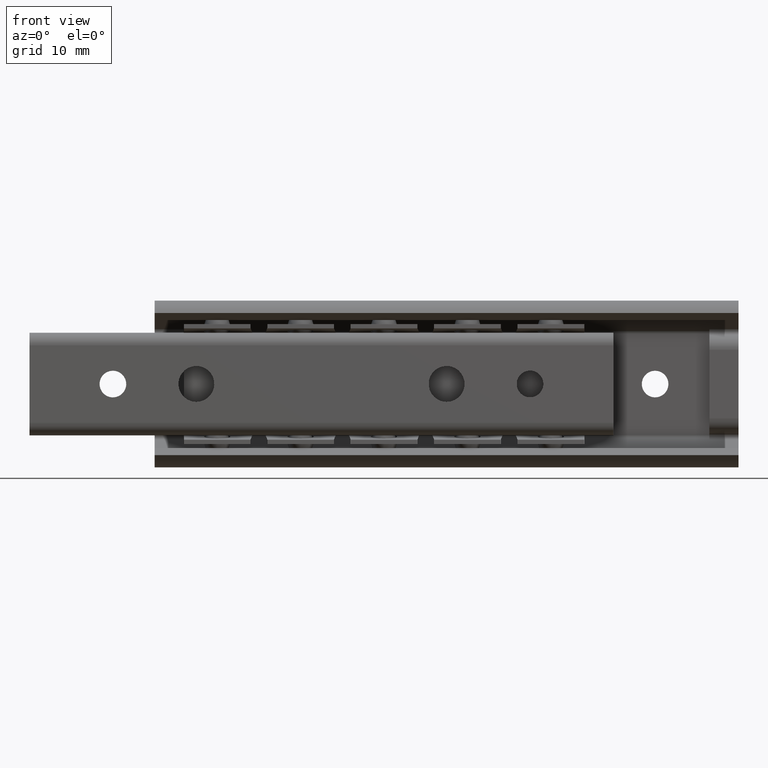
[diagram: clean part render]
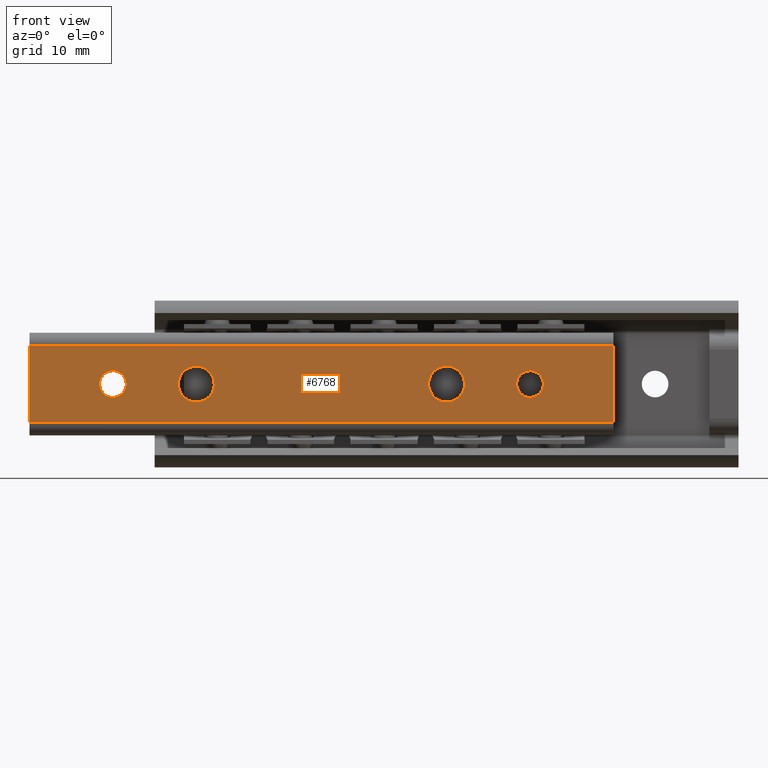
[diagram: same view with one face highlighted and labeled with its STEP entity id]
A machine part, front view. The second image highlights one B-rep face of the part: STEP entity #6768.
In plain terms, the highlighted face is a freeform B-spline surface patch.
Its self-contained STEP definition (entity closure, byte-faithful):
#5509=CARTESIAN_POINT('',(-6.588815242147287,-8.000000000000119,0.188854775741730));
#5510=VERTEX_POINT('',#5509);
#5516=CARTESIAN_POINT('',(-5.0,-8.000000000000119,-1.600000000000000));
#5517=VERTEX_POINT('',#5516);
#5518=CARTESIAN_POINT('',(-6.588815242147287,-8.000000000000119,0.188854775741730));
#5519=CARTESIAN_POINT('',(-6.600000000000000,-8.000000000000119,0.094758591737048));
#5520=CARTESIAN_POINT('',(-6.600000000000000,-8.000000000000119,0.0));
#5521=CARTESIAN_POINT('',(-6.599999999999999,-8.000000000000119,-1.600000000000000));
#5522=CARTESIAN_POINT('',(-5.0,-8.000000000000119,-1.600000000000000));
#5530=(BOUNDED_CURVE()B_SPLINE_CURVE(2,(#5518,#5519,#5520,#5521,#5522),.UNSPECIFIED.,.F.,.U.)B_SPLINE_CURVE_WITH_KNOTS((3,2,3),(0.229562473453754,0.250000000000000,0.500000000000000),.UNSPECIFIED.)CURVE()GEOMETRIC_REPRESENTATION_ITEM()RATIONAL_B_SPLINE_CURVE((0.956026754066579,0.976055948261139,1.0,0.707106781186548,1.0))REPRESENTATION_ITEM(''));
#5531=EDGE_CURVE('',#5510,#5517,#5530,.T.);
#5533=CARTESIAN_POINT('',(-3.402984322542689,-8.000000000000119,-0.097677663544763));
#5534=VERTEX_POINT('',#5533);
#5535=CARTESIAN_POINT('',(-5.0,-8.000000000000119,-1.600000000000000));
#5536=CARTESIAN_POINT('',(-3.494870293496632,-8.000000000000119,-1.600000000000000));
#5537=CARTESIAN_POINT('',(-3.402984322542688,-8.000000000000119,-0.097677663544763));
#5545=(BOUNDED_CURVE()B_SPLINE_CURVE(2,(#5535,#5536,#5537),.UNSPECIFIED.,.F.,.U.)B_SPLINE_CURVE_WITH_KNOTS((3,3),(0.500000000000000,0.739332962179521),.UNSPECIFIED.)CURVE()GEOMETRIC_REPRESENTATION_ITEM()RATIONAL_B_SPLINE_CURVE((1.0,0.719603993356327,0.976072041539366))REPRESENTATION_ITEM(''));
#5546=EDGE_CURVE('',#5517,#5534,#5545,.T.);
#5620=CARTESIAN_POINT('',(-5.0,-8.000000000000119,1.600000000000000));
#5621=VERTEX_POINT('',#5620);
#5622=CARTESIAN_POINT('',(-3.402984322542688,-8.000000000000119,-0.097677663544763));
#5623=CARTESIAN_POINT('',(-3.400000000000000,-8.000000000000119,-0.048884421567544));
#5624=CARTESIAN_POINT('',(-3.400000000000000,-8.000000000000119,0.0));
#5625=CARTESIAN_POINT('',(-3.400000000000001,-8.000000000000119,1.600000000000000));
#5626=CARTESIAN_POINT('',(-5.0,-8.000000000000119,1.600000000000000));
#5634=(BOUNDED_CURVE()B_SPLINE_CURVE(2,(#5622,#5623,#5624,#5625,#5626),.UNSPECIFIED.,.F.,.U.)B_SPLINE_CURVE_WITH_KNOTS((3,2,3),(0.739332962179521,0.750000000000000,1.0),.UNSPECIFIED.)CURVE()GEOMETRIC_REPRESENTATION_ITEM()RATIONAL_B_SPLINE_CURVE((0.976072041539366,0.987502787830221,1.0,0.707106781186548,1.0))REPRESENTATION_ITEM(''));
#5635=EDGE_CURVE('',#5534,#5621,#5634,.T.);
#5637=CARTESIAN_POINT('',(-5.0,-8.000000000000119,1.600000000000000));
#5638=CARTESIAN_POINT('',(-6.421079240998118,-8.000000000000121,1.600000000000001));
#5639=CARTESIAN_POINT('',(-6.588815242147287,-8.000000000000119,0.188854775741730));
#5647=(BOUNDED_CURVE()B_SPLINE_CURVE(2,(#5637,#5638,#5639),.UNSPECIFIED.,.F.,.U.)B_SPLINE_CURVE_WITH_KNOTS((3,3),(0.0,0.229562473453754),.UNSPECIFIED.)CURVE()GEOMETRIC_REPRESENTATION_ITEM()RATIONAL_B_SPLINE_CURVE((1.0,0.731050832925409,0.956026754066579))REPRESENTATION_ITEM(''));
#5648=EDGE_CURVE('',#5621,#5510,#5647,.T.);
#5695=CARTESIAN_POINT('',(2.865029518322007,-8.000000000000119,0.253773604544754));
#5696=VERTEX_POINT('',#5695);
#5702=CARTESIAN_POINT('',(5.0,-8.000000000000119,-2.150000000000000));
#5703=VERTEX_POINT('',#5702);
#5704=CARTESIAN_POINT('',(2.865029518322007,-8.000000000000119,0.253773604544754));
#5705=CARTESIAN_POINT('',(2.850000000000000,-8.000000000000119,0.127331857284676));
#5706=CARTESIAN_POINT('',(2.850000000000000,-8.000000000000119,0.0));
#5707=CARTESIAN_POINT('',(2.850000000000000,-8.000000000000119,-2.150000000000000));
#5708=CARTESIAN_POINT('',(5.0,-8.000000000000119,-2.150000000000000));
#5716=(BOUNDED_CURVE()B_SPLINE_CURVE(2,(#5704,#5705,#5706,#5707,#5708),.UNSPECIFIED.,.F.,.U.)B_SPLINE_CURVE_WITH_KNOTS((3,2,3),(0.229562473510463,0.250000000000000,0.500000000000000),.UNSPECIFIED.)CURVE()GEOMETRIC_REPRESENTATION_ITEM()RATIONAL_B_SPLINE_CURVE((0.956026754177731,0.976055948327578,1.0,0.707106781186547,1.0))REPRESENTATION_ITEM(''));
#5717=EDGE_CURVE('',#5696,#5703,#5716,.T.);
#5719=CARTESIAN_POINT('',(7.145989816579951,-8.000000000000119,-0.131254360442416));
#5720=VERTEX_POINT('',#5719);
#5721=CARTESIAN_POINT('',(5.0,-8.000000000000119,-2.150000000000000));
#5722=CARTESIAN_POINT('',(7.022518043011661,-8.000000000000119,-2.150000000000000));
#5723=CARTESIAN_POINT('',(7.145989816579951,-8.000000000000119,-0.131254360442416));
#5731=(BOUNDED_CURVE()B_SPLINE_CURVE(2,(#5721,#5722,#5723),.UNSPECIFIED.,.F.,.U.)B_SPLINE_CURVE_WITH_KNOTS((3,3),(0.500000000000000,0.739332962170815),.UNSPECIFIED.)CURVE()GEOMETRIC_REPRESENTATION_ITEM()RATIONAL_B_SPLINE_CURVE((1.0,0.719603993366527,0.976072041520707))REPRESENTATION_ITEM(''));
#5732=EDGE_CURVE('',#5703,#5720,#5731,.T.);
#5806=CARTESIAN_POINT('',(5.0,-8.000000000000119,2.150000000000000));
#5807=VERTEX_POINT('',#5806);
#5808=CARTESIAN_POINT('',(7.145989816579951,-8.000000000000119,-0.131254360442416));
#5809=CARTESIAN_POINT('',(7.150000000000000,-8.000000000000119,-0.065688441535680));
#5810=CARTESIAN_POINT('',(7.150000000000000,-8.000000000000119,0.0));
#5811=CARTESIAN_POINT('',(7.150000000000003,-8.000000000000119,2.150000000000000));
#5812=CARTESIAN_POINT('',(5.0,-8.000000000000119,2.150000000000000));
#5820=(BOUNDED_CURVE()B_SPLINE_CURVE(2,(#5808,#5809,#5810,#5811,#5812),.UNSPECIFIED.,.F.,.U.)B_SPLINE_CURVE_WITH_KNOTS((3,2,3),(0.739332962170815,0.750000000000000,1.0),.UNSPECIFIED.)CURVE()GEOMETRIC_REPRESENTATION_ITEM()RATIONAL_B_SPLINE_CURVE((0.976072041520706,0.987502787820020,1.0,0.707106781186547,1.0))REPRESENTATION_ITEM(''));
#5821=EDGE_CURVE('',#5720,#5807,#5820,.T.);
#5823=CARTESIAN_POINT('',(5.0,-8.000000000000119,2.150000000000000));
#5824=CARTESIAN_POINT('',(3.090424769263509,-8.000000000000121,2.150000000000000));
#5825=CARTESIAN_POINT('',(2.865029518322007,-8.000000000000119,0.253773604544754));
#5833=(BOUNDED_CURVE()B_SPLINE_CURVE(2,(#5823,#5824,#5825),.UNSPECIFIED.,.F.,.U.)B_SPLINE_CURVE_WITH_KNOTS((3,3),(0.0,0.229562473510463),.UNSPECIFIED.)CURVE()GEOMETRIC_REPRESENTATION_ITEM()RATIONAL_B_SPLINE_CURVE((1.0,0.731050832858970,0.956026754177731))REPRESENTATION_ITEM(''));
#5834=EDGE_CURVE('',#5807,#5696,#5833,.T.);
#5881=CARTESIAN_POINT('',(32.865029518321997,-8.000000000000117,0.253773604544754));
#5882=VERTEX_POINT('',#5881);
#5888=CARTESIAN_POINT('',(35.0,-8.000000000000119,-2.150000000000000));
#5889=VERTEX_POINT('',#5888);
#5890=CARTESIAN_POINT('',(32.865029518321997,-8.000000000000117,0.253773604544754));
#5891=CARTESIAN_POINT('',(32.850000000000009,-8.000000000000119,0.127331857284676));
#5892=CARTESIAN_POINT('',(32.850000000000001,-8.000000000000119,0.0));
#5893=CARTESIAN_POINT('',(32.850000000000009,-8.000000000000119,-2.150000000000000));
#5894=CARTESIAN_POINT('',(35.0,-8.000000000000119,-2.150000000000000));
#5902=(BOUNDED_CURVE()B_SPLINE_CURVE(2,(#5890,#5891,#5892,#5893,#5894),.UNSPECIFIED.,.F.,.U.)B_SPLINE_CURVE_WITH_KNOTS((3,2,3),(0.229562473510463,0.250000000000000,0.500000000000000),.UNSPECIFIED.)CURVE()GEOMETRIC_REPRESENTATION_ITEM()RATIONAL_B_SPLINE_CURVE((0.956026754177731,0.976055948327578,1.0,0.707106781186547,1.0))REPRESENTATION_ITEM(''));
#5903=EDGE_CURVE('',#5882,#5889,#5902,.T.);
#5905=CARTESIAN_POINT('',(37.145989816579963,-8.000000000000119,-0.131254360442416));
#5906=VERTEX_POINT('',#5905);
#5907=CARTESIAN_POINT('',(35.0,-8.000000000000119,-2.150000000000000));
#5908=CARTESIAN_POINT('',(37.022518043011672,-8.000000000000119,-2.150000000000000));
#5909=CARTESIAN_POINT('',(37.145989816579956,-8.000000000000119,-0.131254360442416));
#5917=(BOUNDED_CURVE()B_SPLINE_CURVE(2,(#5907,#5908,#5909),.UNSPECIFIED.,.F.,.U.)B_SPLINE_CURVE_WITH_KNOTS((3,3),(0.500000000000000,0.739332962170815),.UNSPECIFIED.)CURVE()GEOMETRIC_REPRESENTATION_ITEM()RATIONAL_B_SPLINE_CURVE((1.0,0.719603993366527,0.976072041520707))REPRESENTATION_ITEM(''));
#5918=EDGE_CURVE('',#5889,#5906,#5917,.T.);
#5992=CARTESIAN_POINT('',(35.0,-8.000000000000119,2.150000000000000));
#5993=VERTEX_POINT('',#5992);
#5994=CARTESIAN_POINT('',(37.145989816579956,-8.000000000000119,-0.131254360442416));
#5995=CARTESIAN_POINT('',(37.150000000000006,-8.000000000000119,-0.065688441535680));
#5996=CARTESIAN_POINT('',(37.150000000000013,-8.000000000000119,0.0));
#5997=CARTESIAN_POINT('',(37.150000000000006,-8.000000000000119,2.150000000000000));
#5998=CARTESIAN_POINT('',(35.0,-8.000000000000119,2.150000000000000));
#6006=(BOUNDED_CURVE()B_SPLINE_CURVE(2,(#5994,#5995,#5996,#5997,#5998),.UNSPECIFIED.,.F.,.U.)B_SPLINE_CURVE_WITH_KNOTS((3,2,3),(0.739332962170815,0.750000000000000,1.0),.UNSPECIFIED.)CURVE()GEOMETRIC_REPRESENTATION_ITEM()RATIONAL_B_SPLINE_CURVE((0.976072041520706,0.987502787820020,1.0,0.707106781186547,1.0))REPRESENTATION_ITEM(''));
#6007=EDGE_CURVE('',#5906,#5993,#6006,.T.);
#6009=CARTESIAN_POINT('',(35.0,-8.000000000000119,2.150000000000000));
#6010=CARTESIAN_POINT('',(33.090424769263514,-8.000000000000121,2.150000000000000));
#6011=CARTESIAN_POINT('',(32.865029518322004,-8.000000000000117,0.253773604544754));
#6019=(BOUNDED_CURVE()B_SPLINE_CURVE(2,(#6009,#6010,#6011),.UNSPECIFIED.,.F.,.U.)B_SPLINE_CURVE_WITH_KNOTS((3,3),(0.0,0.229562473510463),.UNSPECIFIED.)CURVE()GEOMETRIC_REPRESENTATION_ITEM()RATIONAL_B_SPLINE_CURVE((1.0,0.731050832858970,0.956026754177731))REPRESENTATION_ITEM(''));
#6020=EDGE_CURVE('',#5993,#5882,#6019,.T.);
#6067=CARTESIAN_POINT('',(43.411184757852709,-8.000000000000117,0.188854775741730));
#6068=VERTEX_POINT('',#6067);
#6074=CARTESIAN_POINT('',(45.0,-8.000000000000119,-1.600000000000000));
#6075=VERTEX_POINT('',#6074);
#6076=CARTESIAN_POINT('',(43.411184757852709,-8.000000000000117,0.188854775741730));
#6077=CARTESIAN_POINT('',(43.400000000000006,-8.000000000000119,0.094758591737048));
#6078=CARTESIAN_POINT('',(43.399999999999999,-8.000000000000119,0.0));
#6079=CARTESIAN_POINT('',(43.399999999999991,-8.000000000000119,-1.600000000000000));
#6080=CARTESIAN_POINT('',(45.0,-8.000000000000119,-1.600000000000000));
#6088=(BOUNDED_CURVE()B_SPLINE_CURVE(2,(#6076,#6077,#6078,#6079,#6080),.UNSPECIFIED.,.F.,.U.)B_SPLINE_CURVE_WITH_KNOTS((3,2,3),(0.229562473453754,0.250000000000000,0.500000000000000),.UNSPECIFIED.)CURVE()GEOMETRIC_REPRESENTATION_ITEM()RATIONAL_B_SPLINE_CURVE((0.956026754066579,0.976055948261139,1.0,0.707106781186548,1.0))REPRESENTATION_ITEM(''));
#6089=EDGE_CURVE('',#6068,#6075,#6088,.T.);
#6091=CARTESIAN_POINT('',(46.597015677457307,-8.000000000000119,-0.097677663544763));
#6092=VERTEX_POINT('',#6091);
#6093=CARTESIAN_POINT('',(45.0,-8.000000000000119,-1.600000000000000));
#6094=CARTESIAN_POINT('',(46.505129706503368,-8.000000000000119,-1.600000000000000));
#6095=CARTESIAN_POINT('',(46.597015677457307,-8.000000000000119,-0.097677663544763));
#6103=(BOUNDED_CURVE()B_SPLINE_CURVE(2,(#6093,#6094,#6095),.UNSPECIFIED.,.F.,.U.)B_SPLINE_CURVE_WITH_KNOTS((3,3),(0.500000000000000,0.739332962179521),.UNSPECIFIED.)CURVE()GEOMETRIC_REPRESENTATION_ITEM()RATIONAL_B_SPLINE_CURVE((1.0,0.719603993356327,0.976072041539366))REPRESENTATION_ITEM(''));
#6104=EDGE_CURVE('',#6075,#6092,#6103,.T.);
#6178=CARTESIAN_POINT('',(45.0,-8.000000000000119,1.600000000000000));
#6179=VERTEX_POINT('',#6178);
#6180=CARTESIAN_POINT('',(46.597015677457314,-8.000000000000119,-0.097677663544763));
#6181=CARTESIAN_POINT('',(46.599999999999994,-8.000000000000119,-0.048884421567544));
#6182=CARTESIAN_POINT('',(46.599999999999987,-8.000000000000119,0.0));
#6183=CARTESIAN_POINT('',(46.599999999999987,-8.000000000000119,1.600000000000000));
#6184=CARTESIAN_POINT('',(45.0,-8.000000000000119,1.600000000000000));
#6192=(BOUNDED_CURVE()B_SPLINE_CURVE(2,(#6180,#6181,#6182,#6183,#6184),.UNSPECIFIED.,.F.,.U.)B_SPLINE_CURVE_WITH_KNOTS((3,2,3),(0.739332962179521,0.750000000000000,1.0),.UNSPECIFIED.)CURVE()GEOMETRIC_REPRESENTATION_ITEM()RATIONAL_B_SPLINE_CURVE((0.976072041539366,0.987502787830221,1.0,0.707106781186548,1.0))REPRESENTATION_ITEM(''));
#6193=EDGE_CURVE('',#6092,#6179,#6192,.T.);
#6195=CARTESIAN_POINT('',(45.0,-8.000000000000119,1.600000000000000));
#6196=CARTESIAN_POINT('',(43.578920759001882,-8.000000000000121,1.600000000000001));
#6197=CARTESIAN_POINT('',(43.411184757852709,-8.000000000000117,0.188854775741730));
#6205=(BOUNDED_CURVE()B_SPLINE_CURVE(2,(#6195,#6196,#6197),.UNSPECIFIED.,.F.,.U.)B_SPLINE_CURVE_WITH_KNOTS((3,3),(0.0,0.229562473453754),.UNSPECIFIED.)CURVE()GEOMETRIC_REPRESENTATION_ITEM()RATIONAL_B_SPLINE_CURVE((1.0,0.731050832925409,0.956026754066579))REPRESENTATION_ITEM(''));
#6206=EDGE_CURVE('',#6179,#6068,#6205,.T.);
#6334=CARTESIAN_POINT('',(-15.0,-8.0,-4.641040000000000));
#6335=VERTEX_POINT('',#6334);
#6351=CARTESIAN_POINT('',(-15.0,-8.000000000000091,4.641039999999900));
#6352=VERTEX_POINT('',#6351);
#6353=CARTESIAN_POINT('',(-15.0,-8.0,-4.641040000000000));
#6354=CARTESIAN_POINT('',(-15.0,-8.000000000000091,4.641039999999900));
#6355=QUASI_UNIFORM_CURVE('',1,(#6353,#6354),.UNSPECIFIED.,.F.,.U.);
#6356=EDGE_CURVE('',#6335,#6352,#6355,.T.);
#6420=CARTESIAN_POINT('',(55.0,-8.0,4.641039999999910));
#6421=VERTEX_POINT('',#6420);
#6437=CARTESIAN_POINT('',(55.0,-8.000000000000091,-4.641040000000000));
#6438=VERTEX_POINT('',#6437);
#6439=CARTESIAN_POINT('',(55.0,-8.0,4.641039999999910));
#6440=CARTESIAN_POINT('',(55.0,-8.000000000000091,-4.641040000000000));
#6441=QUASI_UNIFORM_CURVE('',1,(#6439,#6440),.UNSPECIFIED.,.F.,.U.);
#6442=EDGE_CURVE('',#6421,#6438,#6441,.T.);
#6718=CARTESIAN_POINT('',(55.0,-8.000000000000091,-4.641040000000000));
#6719=CARTESIAN_POINT('',(-15.0,-8.0,-4.641040000000000));
#6720=QUASI_UNIFORM_CURVE('',1,(#6718,#6719),.UNSPECIFIED.,.F.,.U.);
#6721=EDGE_CURVE('',#6438,#6335,#6720,.T.);
#6729=CARTESIAN_POINT('',(-18.496499864326410,-8.000000000000091,-5.104679757713888));
#6730=CARTESIAN_POINT('',(-18.496499864326410,-8.000000000000091,5.104679425760749));
#6731=CARTESIAN_POINT('',(58.496501741872720,-8.000000000000091,-5.104679757713888));
#6732=CARTESIAN_POINT('',(58.496501741872720,-8.000000000000091,5.104679425760749));
#6733=B_SPLINE_SURFACE_WITH_KNOTS('',1,1,((#6729,#6731),(#6730,#6732)),.UNSPECIFIED.,.F.,.F.,.U.,(2,2),(2,2),(0.0,10.209359183474641),(0.0,76.993001606199130),.UNSPECIFIED.);
#6734=CARTESIAN_POINT('',(55.0,-8.0,4.641039999999910));
#6735=CARTESIAN_POINT('',(-15.0,-8.000000000000091,4.641039999999900));
#6736=QUASI_UNIFORM_CURVE('',1,(#6734,#6735),.UNSPECIFIED.,.F.,.U.);
#6737=EDGE_CURVE('',#6421,#6352,#6736,.T.);
#6738=ORIENTED_EDGE('',*,*,#6737,.T.);
#6739=ORIENTED_EDGE('',*,*,#6356,.F.);
#6740=ORIENTED_EDGE('',*,*,#6721,.F.);
#6741=ORIENTED_EDGE('',*,*,#6442,.F.);
#6742=EDGE_LOOP('',(#6738,#6739,#6740,#6741));
#6743=FACE_OUTER_BOUND('',#6742,.T.);
#6744=ORIENTED_EDGE('',*,*,#6104,.F.);
#6745=ORIENTED_EDGE('',*,*,#6089,.F.);
#6746=ORIENTED_EDGE('',*,*,#6206,.F.);
#6747=ORIENTED_EDGE('',*,*,#6193,.F.);
#6748=EDGE_LOOP('',(#6744,#6745,#6746,#6747));
#6749=FACE_BOUND('',#6748,.T.);
#6750=ORIENTED_EDGE('',*,*,#5918,.F.);
#6751=ORIENTED_EDGE('',*,*,#5903,.F.);
#6752=ORIENTED_EDGE('',*,*,#6020,.F.);
#6753=ORIENTED_EDGE('',*,*,#6007,.F.);
#6754=EDGE_LOOP('',(#6750,#6751,#6752,#6753));
#6755=FACE_BOUND('',#6754,.T.);
#6756=ORIENTED_EDGE('',*,*,#5732,.F.);
#6757=ORIENTED_EDGE('',*,*,#5717,.F.);
#6758=ORIENTED_EDGE('',*,*,#5834,.F.);
#6759=ORIENTED_EDGE('',*,*,#5821,.F.);
#6760=EDGE_LOOP('',(#6756,#6757,#6758,#6759));
#6761=FACE_BOUND('',#6760,.T.);
#6762=ORIENTED_EDGE('',*,*,#5546,.F.);
#6763=ORIENTED_EDGE('',*,*,#5531,.F.);
#6764=ORIENTED_EDGE('',*,*,#5648,.F.);
#6765=ORIENTED_EDGE('',*,*,#5635,.F.);
#6766=EDGE_LOOP('',(#6762,#6763,#6764,#6765));
#6767=FACE_BOUND('',#6766,.T.);
#6768=ADVANCED_FACE('',(#6743,#6749,#6755,#6761,#6767),#6733,.F.);